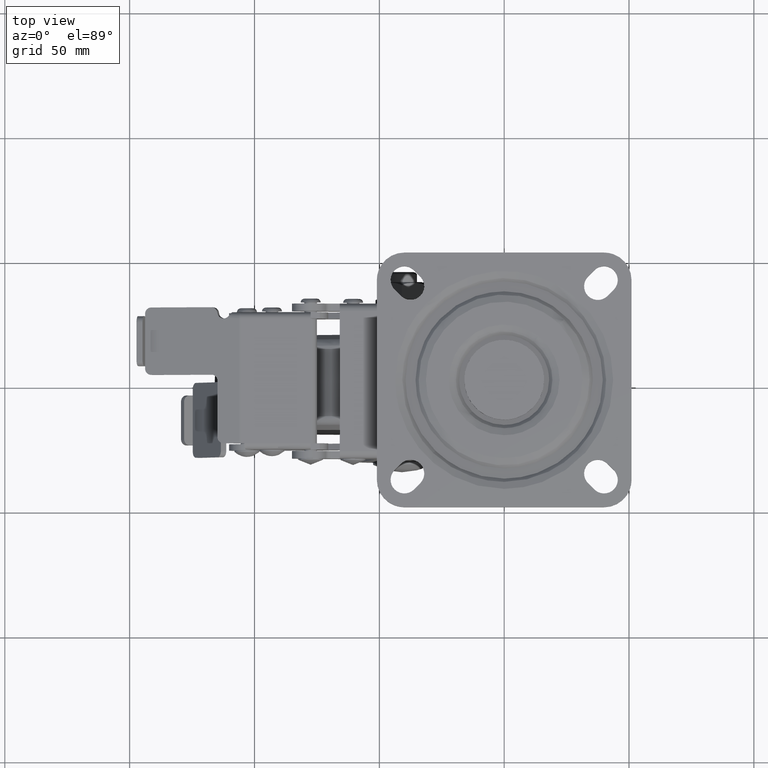
[diagram: clean part render]
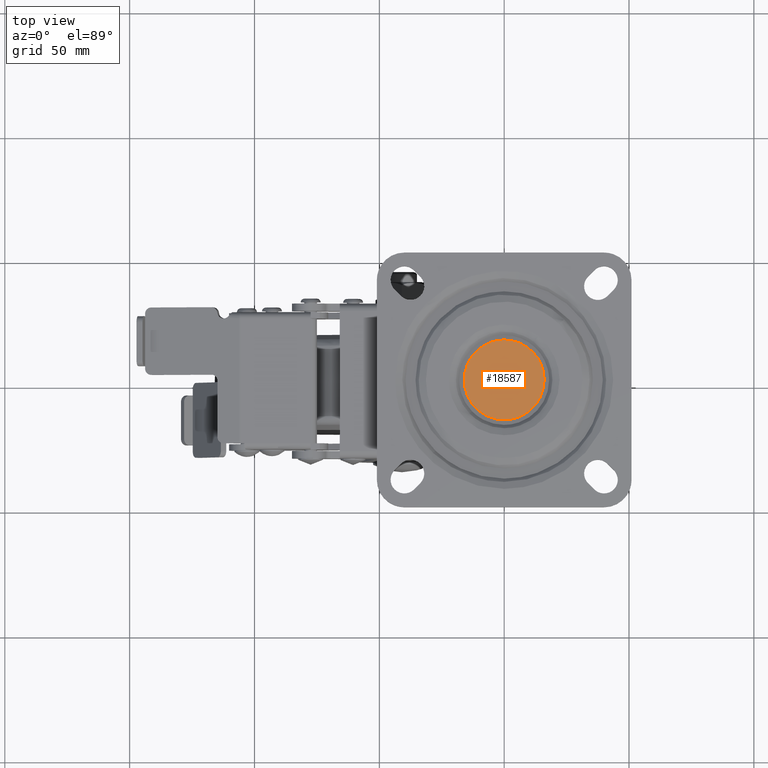
[diagram: same view with one face highlighted and labeled with its STEP entity id]
A machine part, top view. The second image highlights one B-rep face of the part: STEP entity #18587.
In plain terms, the highlighted face is a freeform B-spline surface patch.
Its self-contained STEP definition (entity closure, byte-faithful):
#17708=CARTESIAN_POINT('',(-10.331872842804080,-12.216890781492349,2.257573E-012));
#17709=VERTEX_POINT('',#17708);
#17710=CARTESIAN_POINT('',(-16.0,0.0,0.0));
#17711=VERTEX_POINT('',#17710);
#17712=CARTESIAN_POINT('',(-10.331872842804080,-12.216890781492349,2.257573E-012));
#17713=CARTESIAN_POINT('',(-11.050594641379590,-11.609185677795390,2.145274E-012));
#17714=CARTESIAN_POINT('',(-12.329102043470501,-10.318017089346901,1.906678E-012));
#17715=CARTESIAN_POINT('',(-14.037570294456010,-7.878478907912392,1.455873E-012));
#17716=CARTESIAN_POINT('',(-15.168086153504630,-5.352478975770913,9.890904E-013));
#17717=CARTESIAN_POINT('',(-15.852607197310080,-2.606374703923494,4.816348E-013));
#17718=CARTESIAN_POINT('',(-16.000088501317158,-0.941203239725872,1.739260E-013));
#17719=CARTESIAN_POINT('',(-16.0,0.0,0.0));
#17720=B_SPLINE_CURVE_WITH_KNOTS('',3,(#17712,#17713,#17714,#17715,#17716,#17717,#17718,#17719),.UNSPECIFIED.,.F.,.U.,(4,1,1,1,1,4),(0.000000038475781,2.823620503851771,5.430077299115224,8.905273148058097,11.077312600547099,13.900933065911641),.UNSPECIFIED.);
#17721=EDGE_CURVE('',#17709,#17711,#17720,.T.);
#17723=CARTESIAN_POINT('',(0.000002130418828,15.999999999999860,0.0));
#17724=VERTEX_POINT('',#17723);
#17725=CARTESIAN_POINT('',(-16.0,0.0,0.0));
#17726=CARTESIAN_POINT('',(-16.000181941494692,1.112665812235393,0.0));
#17727=CARTESIAN_POINT('',(-15.780606841331480,3.206969109919618,0.0));
#17728=CARTESIAN_POINT('',(-14.865846167693320,6.157657403439943,0.0));
#17729=CARTESIAN_POINT('',(-13.640648383647751,8.483819980629189,0.0));
#17730=CARTESIAN_POINT('',(-12.117211306407411,10.537900104628040,0.0));
#17731=CARTESIAN_POINT('',(-10.305700266767600,12.349540204820530,0.0));
#17732=CARTESIAN_POINT('',(-8.146912157521264,13.850134829663400,0.0));
#17733=CARTESIAN_POINT('',(-5.663517605509303,15.043424901243529,0.0));
#17734=CARTESIAN_POINT('',(-3.010669855134104,15.812739372434629,0.0));
#17735=CARTESIAN_POINT('',(-0.981731489258098,16.000089936473479,0.0));
#17736=CARTESIAN_POINT('',(0.000002130418828,15.999999999999860,0.0));
#17737=B_SPLINE_CURVE_WITH_KNOTS('',3,(#17725,#17726,#17727,#17728,#17729,#17730,#17731,#17732,#17733,#17734,#17735,#17736),.UNSPECIFIED.,.F.,.U.,(4,1,1,1,1,1,1,1,1,4),(0.000000145838928,3.337962628072106,6.283225989306537,9.228519622305159,11.192012215924800,13.940881306395561,16.886143528151251,19.046028710895769,22.187684744147781,25.132900126752020),.UNSPECIFIED.);
#17738=EDGE_CURVE('',#17711,#17724,#17737,.T.);
#17740=CARTESIAN_POINT('',(16.0,0.0,0.0));
#17741=VERTEX_POINT('',#17740);
#17742=CARTESIAN_POINT('',(0.000002130418828,15.999999999999860,0.0));
#17743=CARTESIAN_POINT('',(1.112663666334871,16.000180366797242,0.0));
#17744=CARTESIAN_POINT('',(3.076079881345161,15.794312036875271,0.0));
#17745=CARTESIAN_POINT('',(5.908723223114439,14.954051770981810,0.0));
#17746=CARTESIAN_POINT('',(8.264287877559488,13.786373633843549,0.0));
#17747=CARTESIAN_POINT('',(10.444979193919810,12.210124226924799,0.0));
#17748=CARTESIAN_POINT('',(12.535482912073460,10.119983205653890,0.0));
#17749=CARTESIAN_POINT('',(14.312812544952710,7.424307694282264,0.0));
#17750=CARTESIAN_POINT('',(15.661864371575129,3.926755152187712,0.0));
#17751=CARTESIAN_POINT('',(16.000517144466521,1.439943314259650,0.0));
#17752=CARTESIAN_POINT('',(16.0,0.0,0.0));
#17753=B_SPLINE_CURVE_WITH_KNOTS('',3,(#17742,#17743,#17744,#17745,#17746,#17747,#17748,#17749,#17750,#17751,#17752),.UNSPECIFIED.,.F.,.U.,(4,1,1,1,1,1,1,1,4),(0.000000146577879,3.337962309466345,5.890518747012894,8.835794612683127,11.192011148582290,13.940879976599490,17.671552300571129,20.813204742299359,25.132897725258431),.UNSPECIFIED.);
#17754=EDGE_CURVE('',#17724,#17741,#17753,.T.);
#17756=CARTESIAN_POINT('',(11.605989541420920,-11.013672854431301,-3.879341E-012));
#17757=VERTEX_POINT('',#17756);
#17758=CARTESIAN_POINT('',(16.0,0.0,0.0));
#17759=CARTESIAN_POINT('',(16.000222798038440,-1.202119063888486,-4.234219E-013));
#17760=CARTESIAN_POINT('',(15.749256840874001,-3.416385438375532,-1.203352E-012));
#17761=CARTESIAN_POINT('',(14.808781429840280,-6.251493702049777,-2.201961E-012));
#17762=CARTESIAN_POINT('',(13.474564445661549,-8.774758119640790,-3.090729E-012));
#17763=CARTESIAN_POINT('',(12.346477414375840,-10.233588823362270,-3.604573E-012));
#17764=CARTESIAN_POINT('',(11.605989541420920,-11.013672854431301,-3.879341E-012));
#17765=B_SPLINE_CURVE_WITH_KNOTS('',3,(#17758,#17759,#17760,#17761,#17762,#17763,#17764),.UNSPECIFIED.,.F.,.U.,(4,1,1,1,4),(0.000000039267574,3.606315338322366,6.643165999181877,8.920865141875986,12.147562628871119),.UNSPECIFIED.);
#17766=EDGE_CURVE('',#17741,#17757,#17765,.T.);
#17855=CARTESIAN_POINT('',(-0.000002130418553,-15.999999999999860,0.0));
#17856=VERTEX_POINT('',#17855);
#17857=CARTESIAN_POINT('',(-0.000002130418553,-15.999999999999860,0.0));
#17858=CARTESIAN_POINT('',(-1.170011949768800,-16.000223752968338,2.556538E-013));
#17859=CARTESIAN_POINT('',(-3.217386834764167,-15.774352053734511,7.030169E-013));
#17860=CARTESIAN_POINT('',(-6.019786877048515,-14.902476673498381,1.315357E-012));
#17861=CARTESIAN_POINT('',(-8.326880276851073,-13.741570938945699,1.819470E-012));
#17862=CARTESIAN_POINT('',(-9.706555374525447,-12.745786553249561,2.120937E-012));
#17863=CARTESIAN_POINT('',(-10.331872842804080,-12.216890781492349,2.257573E-012));
#17864=B_SPLINE_CURVE_WITH_KNOTS('',3,(#17857,#17858,#17859,#17860,#17861,#17862,#17863),.UNSPECIFIED.,.F.,.U.,(4,1,1,1,4),(0.000000037144426,3.509990757687656,6.142460365298201,8.774980900150265,11.231969476231590),.UNSPECIFIED.);
#17865=EDGE_CURVE('',#17856,#17709,#17864,.T.);
#17891=CARTESIAN_POINT('',(11.605989541420920,-11.013672854431301,-3.879341E-012));
#17892=CARTESIAN_POINT('',(10.628596980624581,-12.044196089422160,-3.552645E-012));
#17893=CARTESIAN_POINT('',(8.875212045451889,-13.456776027907649,-2.966570E-012));
#17894=CARTESIAN_POINT('',(6.273647476396923,-14.775307242139830,-2.096988E-012));
#17895=CARTESIAN_POINT('',(3.516638997705446,-15.718924029321199,-1.175449E-012));
#17896=CARTESIAN_POINT('',(1.420326139075289,-16.000489612018701,-4.747495E-013));
#17897=CARTESIAN_POINT('',(-0.000002130418553,-15.999999999999860,0.0));
#17898=B_SPLINE_CURVE_WITH_KNOTS('',3,(#17891,#17892,#17893,#17894,#17895,#17896,#17897),.UNSPECIFIED.,.F.,.U.,(4,1,1,1,4),(0.000000044974982,4.260825866628402,6.695542934597869,8.724512713578019,12.985338535258769),.UNSPECIFIED.);
#17899=EDGE_CURVE('',#17757,#17856,#17898,.T.);
#18574=CARTESIAN_POINT('',(-17.598399937977788,-17.598399937977639,0.0));
#18575=CARTESIAN_POINT('',(17.598400796284679,-17.598399937977639,0.0));
#18576=CARTESIAN_POINT('',(-17.598399937977788,17.598400796284519,0.0));
#18577=CARTESIAN_POINT('',(17.598400796284679,17.598400796284519,0.0));
#18578=B_SPLINE_SURFACE_WITH_KNOTS('',1,1,((#18574,#18576),(#18575,#18577)),.UNSPECIFIED.,.F.,.F.,.U.,(2,2),(2,2),(0.0,35.196800734262467),(0.0,35.196800734262162),.UNSPECIFIED.);
#18579=ORIENTED_EDGE('',*,*,#17721,.F.);
#18580=ORIENTED_EDGE('',*,*,#17865,.F.);
#18581=ORIENTED_EDGE('',*,*,#17899,.F.);
#18582=ORIENTED_EDGE('',*,*,#17766,.F.);
#18583=ORIENTED_EDGE('',*,*,#17754,.F.);
#18584=ORIENTED_EDGE('',*,*,#17738,.F.);
#18585=EDGE_LOOP('',(#18579,#18580,#18581,#18582,#18583,#18584));
#18586=FACE_OUTER_BOUND('',#18585,.T.);
#18587=ADVANCED_FACE('',(#18586),#18578,.T.);